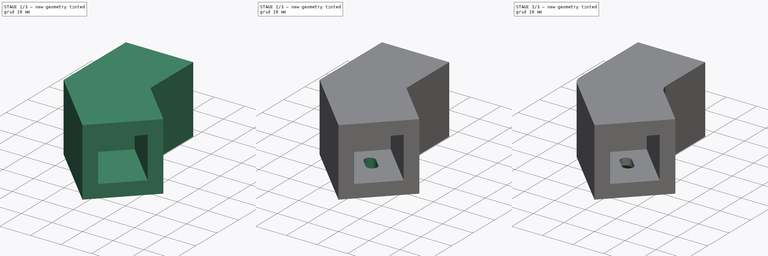
[diagram: build sequence overview — one tinted view per stage of 3, left to right]
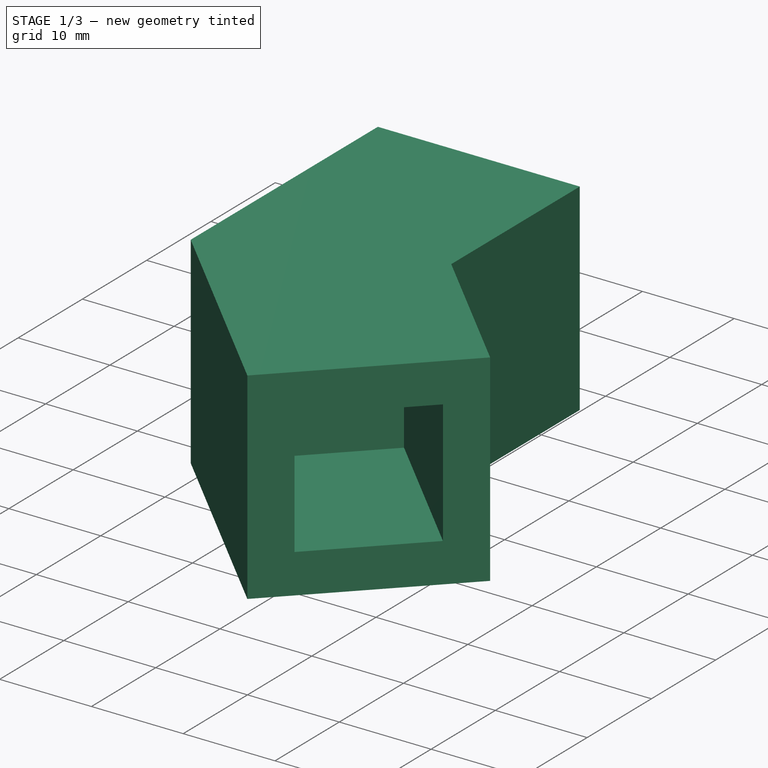
[diagram: stage 1 of 3 — iso view after this stage's code; geometry added in this stage tinted green]
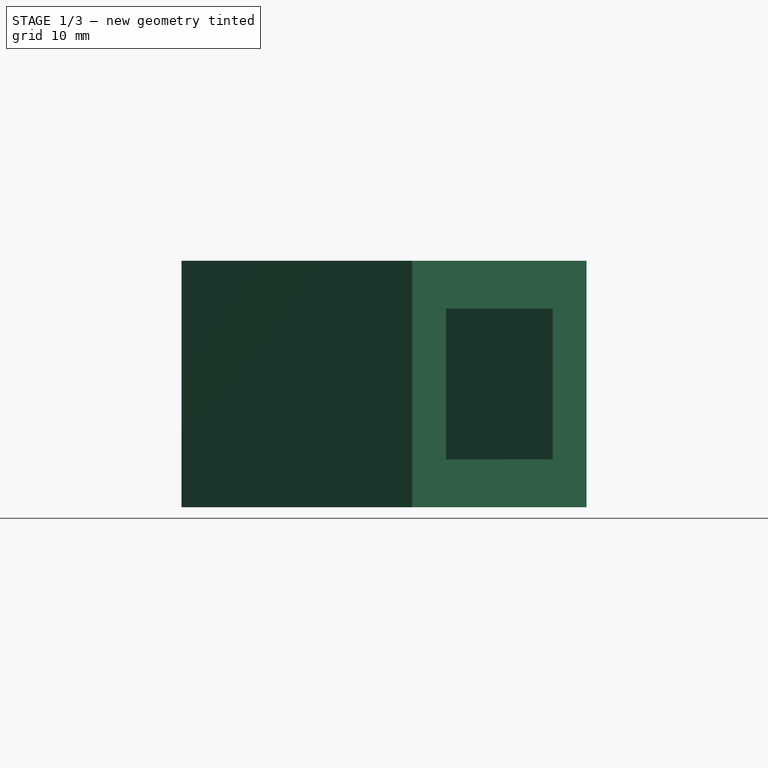
[diagram: stage 1 of 3 — front view after this stage's code; geometry added in this stage tinted green]
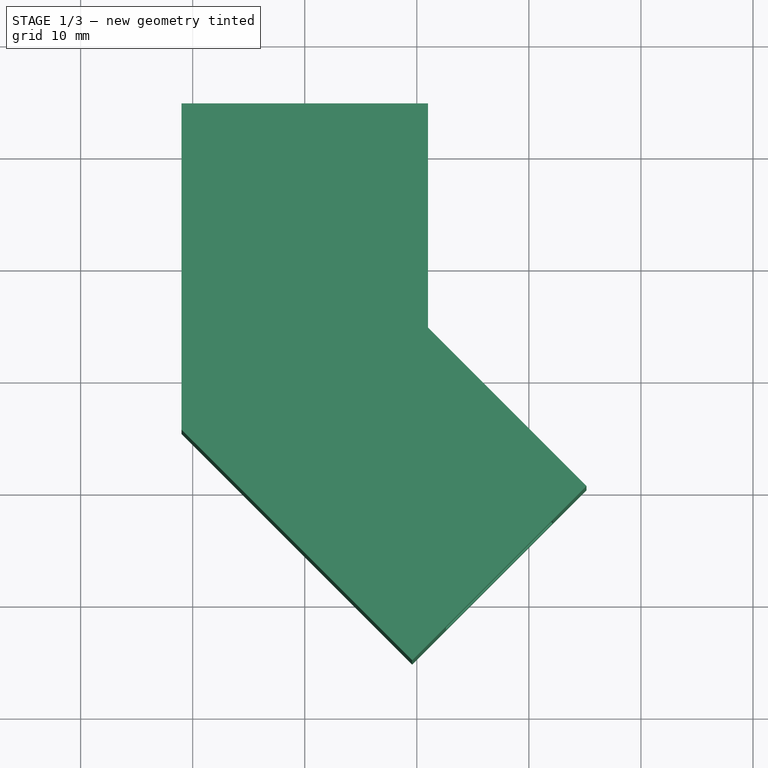
[diagram: stage 1 of 3 — top view after this stage's code; geometry added in this stage tinted green]
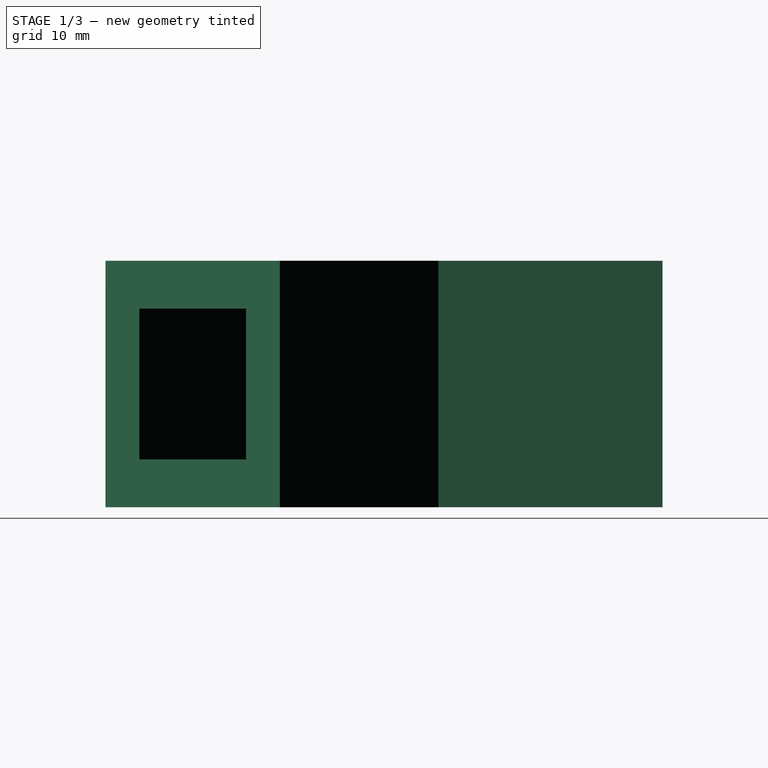
[diagram: stage 1 of 3 — right view after this stage's code; geometry added in this stage tinted green]
FCSTD DOCUMENT  (FreeCAD 0.17R13634 (Git))
Label: Elbow135_square V1
License: All rights reserved
LicenseURL: http://en.wikipedia.org/wiki/All_rights_reserved
objects: Sketcher::SketchObject×4, PartDesign::Pocket×3, PartDesign::Pad×1, PartDesign::Chamfer×1, PartDesign::Fillet×1, PartDesign::Body×1
note: 15 computed .brp shape members not serialized (recipe doc carries the construction recipe); baked Part::Feature solids carry a one-line shape summary decoded from their .brp

FEATURE [Sketcher::SketchObject] Sketch  label="Profile"
  MapMode = 5
  Support = -> [XY_Plane]
  sketch-geometry (7):
    g0: LineSegment StartX=-11 StartY=24.5563 StartZ=0 EndX=11 EndY=24.5563 EndZ=0
    g1: LineSegment StartX=11 StartY=24.5563 StartZ=0 EndX=11 EndY=4.55635 EndZ=0
    g2: LineSegment StartX=11 StartY=4.55635 StartZ=0 EndX=25.1421 EndY=-9.58579 EndZ=0
    g3: LineSegment StartX=25.1421 StartY=-9.58579 StartZ=0 EndX=9.58579 EndY=-25.1421 EndZ=0
    g4: LineSegment StartX=9.58579 StartY=-25.1421 StartZ=0 EndX=-11 EndY=-4.55635 EndZ=0
    g5: LineSegment StartX=-11 StartY=-4.55635 StartZ=0 EndX=-11 EndY=24.5563 EndZ=0
    g6: LineSegment [constr] StartX=-11 StartY=-4.55635 StartZ=0 EndX=11 EndY=4.55635 EndZ=0
  constraints (20):
    c: Horizontal(g0)
    c: Coincident(g0,g1)
    c: Coincident(g1,g2)
    c: Coincident(g2,g3)
    c: Coincident(g3,g4)
    c: Coincident(g4,g5)
    c: Coincident(g5,g0)
    c: Vertical(g5)
    c: Vertical(g1)
    c: Symmetric(g0,g0,g-2)
    c: Angle(g2,g1) = 2.35619
    c: Angle(g4,g5) = 2.35619
    c: Perpendicular(g3,g2)
    c: Equal(g1,g2)
    c: Equal(g5,g4)
    c: Distance(g0) = 22
    c: Distance(g1) = 20
    c: Coincident(g6,g4)
    c: Coincident(g6,g1)
    c: PointOnObject(g-1,g6)
FEATURE [PartDesign::Pad] Pad
  Length = 22
  Length2 = 100
  Profile = -> Sketch
  Type = 0
FEATURE [Sketcher::SketchObject] Sketch001  label="SquareHole1"
  ExternalGeometry = -> [Pad]
  MapMode = 5
  Placement = pos=(17.364,-17.364,0) rot=(0.862856,0.357407,0.357407;1.71777rad)
  Support = -> [Pad]
  sketch-geometry (10):
    g0: LineSegment [constr] StartX=-11 StartY=22 StartZ=0 EndX=11 EndY=0 EndZ=0
    g1: LineSegment [constr] StartX=11 StartY=22 StartZ=0 EndX=-11 EndY=0 EndZ=0
    g2: GeomPoint X=3.4e-11 Y=11 Z=0
    g3: LineSegment StartX=-6.725 StartY=17.725 StartZ=0 EndX=6.725 EndY=17.725 EndZ=0
    g4: LineSegment StartX=6.725 StartY=17.725 StartZ=0 EndX=6.725 EndY=4.275 EndZ=0
    g5: LineSegment StartX=6.725 StartY=4.275 StartZ=0 EndX=-6.725 EndY=4.275 EndZ=0
    g6: LineSegment StartX=-6.725 StartY=4.275 StartZ=0 EndX=-6.725 EndY=17.725 EndZ=0
    g7: LineSegment [constr] StartX=-6.725 StartY=17.725 StartZ=0 EndX=6.725 EndY=4.275 EndZ=0
    g8: LineSegment [constr] StartX=6.725 StartY=17.725 StartZ=0 EndX=-6.725 EndY=4.275 EndZ=0
    g9: GeomPoint X=3.4e-11 Y=11 Z=0
  constraints (23):
    c: Coincident(g0,g-4)
    c: Coincident(g0,g-3)
    c: Coincident(g1,g-3)
    c: Coincident(g1,g-4)
    c: PointOnObject(g2,g1)
    c: PointOnObject(g2,g0)
    c: Coincident(g3,g4)
    c: Coincident(g4,g5)
    c: Coincident(g5,g6)
    c: Coincident(g6,g3)
    c: Horizontal(g3)
    c: Horizontal(g5)
    c: Vertical(g4)
    c: Vertical(g6)
    c: Coincident(g7,g3)
    c: Coincident(g7,g4)
    c: Coincident(g8,g3)
    c: Coincident(g8,g5)
    c: PointOnObject(g9,g8)
    c: PointOnObject(g9,g7)
    c: Coincident(g2,g9)
    c: Equal(g4,g5)
    c: Distance(g4) = 13.45
FEATURE [PartDesign::Pocket] Pocket
  BaseFeature = -> Pad
  Length = 20
  Length2 = 100
  Profile = -> Sketch001
  Type = 0
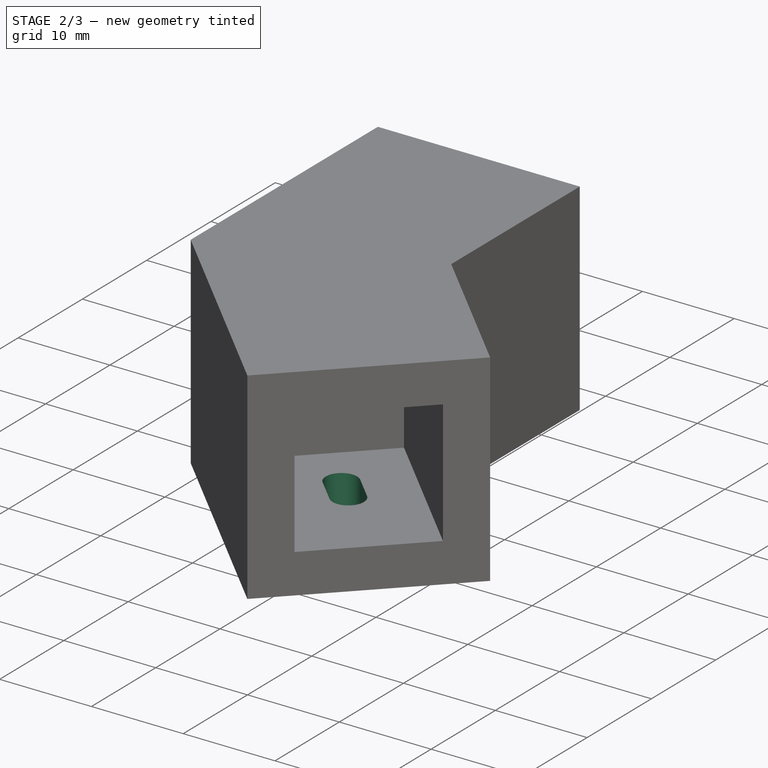
[diagram: stage 2 of 3 — iso view after this stage's code; geometry added in this stage tinted green]
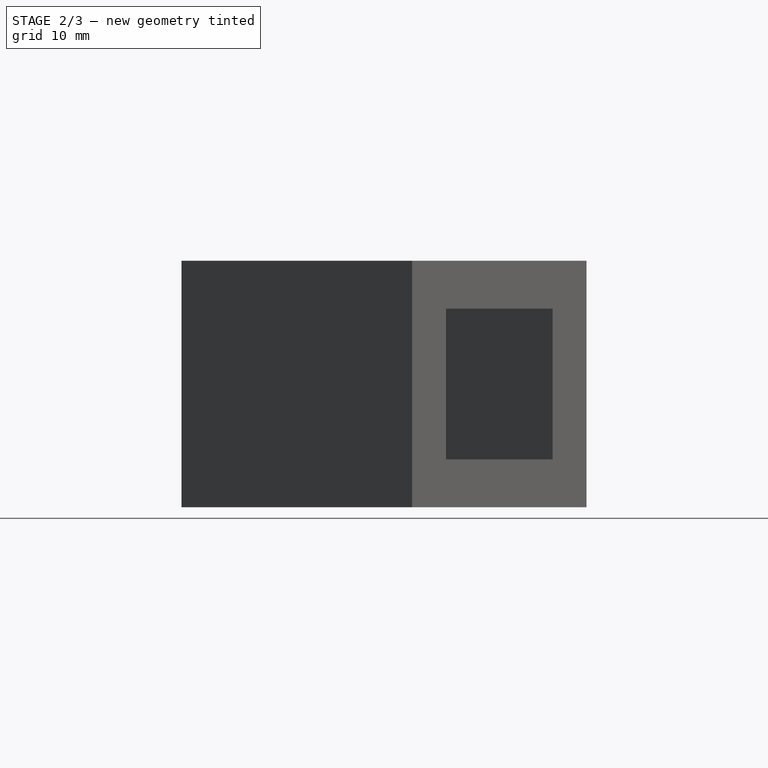
[diagram: stage 2 of 3 — front view after this stage's code; geometry added in this stage tinted green]
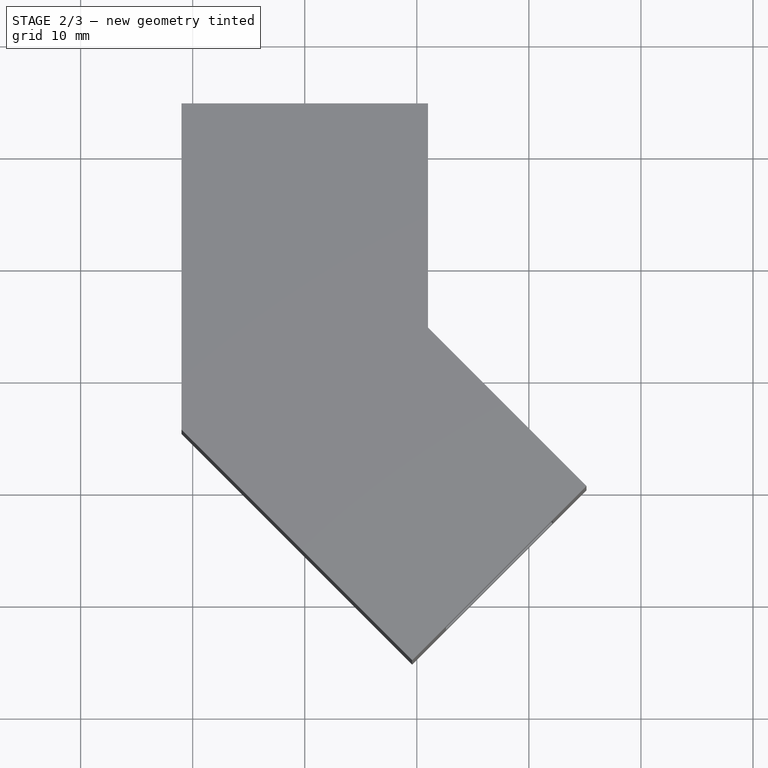
[diagram: stage 2 of 3 — top view after this stage's code; geometry added in this stage tinted green]
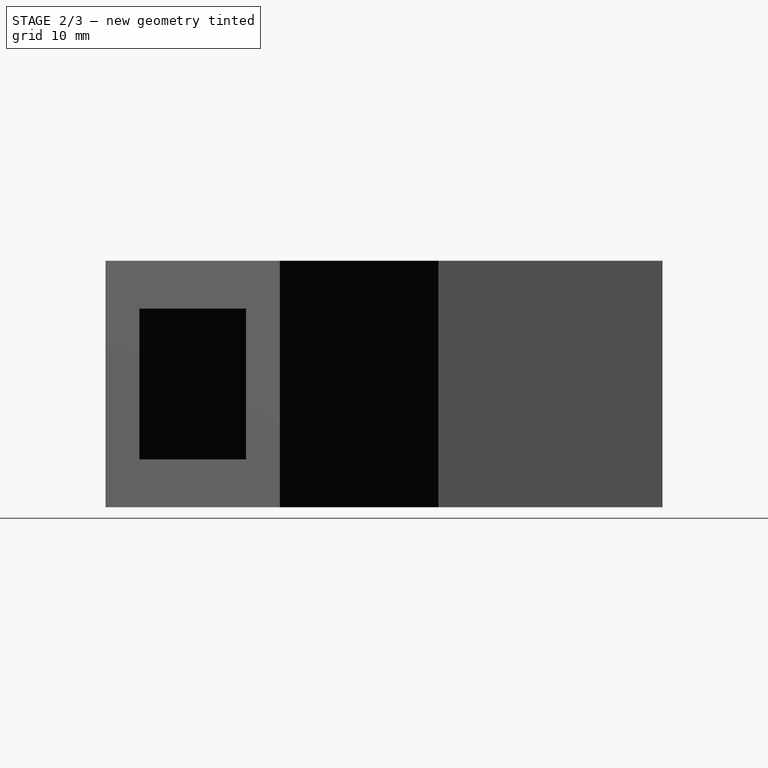
[diagram: stage 2 of 3 — right view after this stage's code; geometry added in this stage tinted green]
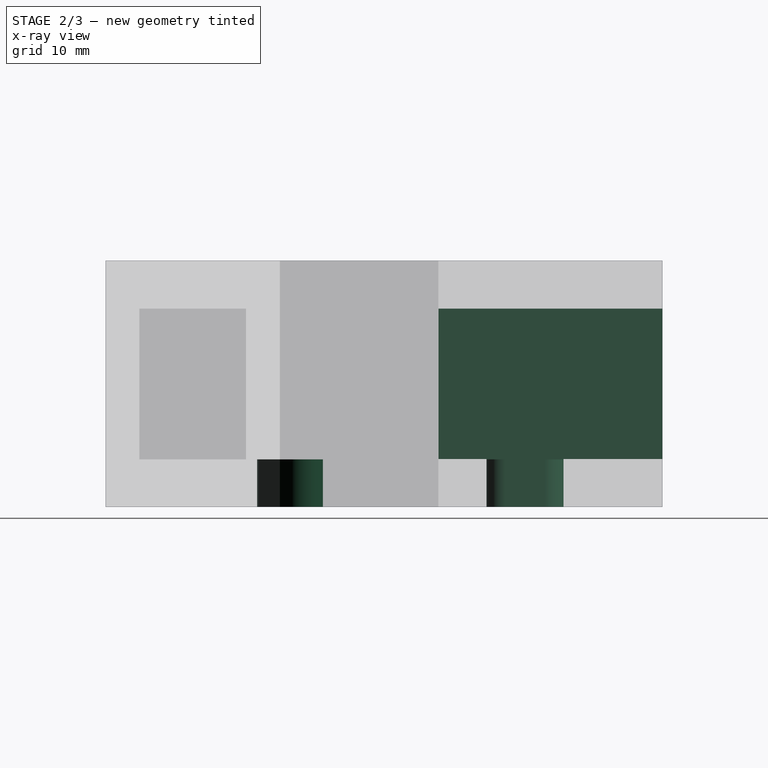
[diagram: stage 2 of 3 — x-ray composite at the right view; earlier geometry ghosted, this stage's added geometry solid]
FEATURE [Sketcher::SketchObject] Sketch002  label="SquareHole2"
  ExternalGeometry = -> [Pocket]
  MapMode = 5
  Placement = pos=(0,24.5563,0) rot=(0,0.707107,0.707107;3.14159rad)
  Support = -> [Pocket]
  sketch-geometry (10):
    g0: LineSegment [constr] StartX=-11 StartY=22 StartZ=0 EndX=11 EndY=0 EndZ=0
    g1: LineSegment [constr] StartX=-11 StartY=0 StartZ=0 EndX=11 EndY=22 EndZ=0
    g2: GeomPoint X=0 Y=11 Z=0
    g3: LineSegment StartX=-6.725 StartY=17.725 StartZ=0 EndX=6.725 EndY=17.725 EndZ=0
    g4: LineSegment StartX=6.725 StartY=17.725 StartZ=0 EndX=6.725 EndY=4.275 EndZ=0
    g5: LineSegment StartX=6.725 StartY=4.275 StartZ=0 EndX=-6.725 EndY=4.275 EndZ=0
    g6: LineSegment StartX=-6.725 StartY=4.275 StartZ=0 EndX=-6.725 EndY=17.725 EndZ=0
    g7: LineSegment [constr] StartX=-6.725 StartY=17.725 StartZ=0 EndX=6.725 EndY=4.275 EndZ=0
    g8: LineSegment [constr] StartX=6.725 StartY=17.725 StartZ=0 EndX=-6.725 EndY=4.275 EndZ=0
    g9: GeomPoint X=0 Y=11 Z=0
  constraints (23):
    c: Coincident(g0,g-3)
    c: Coincident(g0,g-4)
    c: Coincident(g1,g-3)
    c: Coincident(g1,g-4)
    c: PointOnObject(g2,g1)
    c: PointOnObject(g2,g0)
    c: Coincident(g3,g4)
    c: Coincident(g4,g5)
    c: Coincident(g5,g6)
    c: Coincident(g6,g3)
    c: Horizontal(g3)
    c: Horizontal(g5)
    c: Vertical(g4)
    c: Vertical(g6)
    c: Coincident(g7,g3)
    c: Coincident(g7,g4)
    c: Coincident(g8,g3)
    c: Coincident(g8,g5)
    c: PointOnObject(g9,g8)
    c: PointOnObject(g9,g7)
    c: Coincident(g2,g9)
    c: Equal(g3,g4)
    c: Distance(g3) = 13.45
FEATURE [PartDesign::Pocket] Pocket001
  BaseFeature = -> Pocket
  Length = 20
  Length2 = 100
  Profile = -> Sketch002
  Type = 0
FEATURE [Sketcher::SketchObject] Sketch003  label="Slot1"
  ExternalGeometry = -> [Pocket001]
  MapMode = 5
  Placement = pos=(0,0,0) rot=(1,0,0;3.14159rad)
  Support = -> [Pocket001]
  sketch-geometry (18):
    g0: LineSegment [constr] StartX=0 StartY=0 StartZ=0 EndX=17.364 EndY=17.364 EndZ=0
    g1: ArcOfCircle CenterX=0 CenterY=-10.5282 CenterZ=0 NormalX=0 NormalY=0 NormalZ=1 AngleXU=0 Radius=1.7 StartAngle=0 EndAngle=3.14159
    g2: ArcOfCircle CenterX=0 CenterY=-14.0282 CenterZ=0 NormalX=0 NormalY=0 NormalZ=1 AngleXU=0 Radius=1.7 StartAngle=3.14159 EndAngle=6.28319
    g3: LineSegment StartX=-1.7 StartY=-10.5282 StartZ=0 EndX=-1.7 EndY=-14.0282 EndZ=0
    g4: LineSegment StartX=1.7 StartY=-10.5282 StartZ=0 EndX=1.7 EndY=-14.0282 EndZ=0
    g5: LineSegment [constr] StartX=0 StartY=-10.5282 StartZ=0 EndX=0 EndY=0 EndZ=0
    g6: LineSegment [constr] StartX=0 StartY=-14.0282 StartZ=0 EndX=0 EndY=-24.5563 EndZ=0
    g7: LineSegment StartX=8.71734 StartY=11.1215 StartZ=0 EndX=6.24246 EndY=8.64663 EndZ=0
    g8: LineSegment StartX=11.1215 StartY=8.71734 StartZ=0 EndX=8.64663 EndY=6.24246 EndZ=0
    g9: ArcOfCircle CenterX=9.91942 CenterY=9.91942 CenterZ=0 NormalX=0 NormalY=0 NormalZ=1 AngleXU=0 Radius=1.7 StartAngle=5.49779 EndAngle=8.63938
    g10: ArcOfCircle CenterX=7.44454 CenterY=7.44454 CenterZ=0 NormalX=0 NormalY=0 NormalZ=1 AngleXU=0 Radius=1.7 StartAngle=2.35619 EndAngle=5.49779
    g11: LineSegment [constr] StartX=9.91942 StartY=9.91942 StartZ=0 EndX=17.364 EndY=17.364 EndZ=0
    g12: LineSegment [constr] StartX=7.44454 StartY=7.44454 StartZ=0 EndX=0 EndY=0 EndZ=0
    g13: LineSegment [constr] StartX=21.9955 StartY=12.7324 StartZ=0 EndX=14.551 EndY=5.28787 EndZ=0
    g14: LineSegment [constr] StartX=4.63155 StartY=-4.63155 StartZ=0 EndX=12.0761 EndY=2.81299 EndZ=0
    g15: LineSegment [constr] StartX=4.63155 StartY=-4.63155 StartZ=0 EndX=0 EndY=0 EndZ=0
    g16: LineSegment [constr] StartX=12.0761 StartY=2.81299 StartZ=0 EndX=7.44454 EndY=7.44454 EndZ=0
    g17: LineSegment [constr] StartX=9.91942 StartY=9.91942 StartZ=0 EndX=14.551 EndY=5.28787 EndZ=0
  constraints (47):
    c: Coincident(g0,g-1)
    c: PointOnObject(g0,g-5)
    c: Perpendicular(g-5,g0)
    c: Tangent(g1,g4) = 1.5708
    c: Tangent(g1,g3) = -1.5708
    c: Tangent(g3,g2) = -1.5708
    c: Tangent(g4,g2) = 1.5708
    c: Vertical(g3)
    c: Equal(g1,g2)
    c: PointOnObject(g1,g-2)
    c: Coincident(g5,g1)
    c: Coincident(g5,g-1)
    c: Coincident(g6,g2)
    c: PointOnObject(g6,g-6)
    c: PointOnObject(g6,g-2)
    c: Equal(g5,g6)
    c: Distance(g1,g1) = 3.4
    c: Distance(g1,g2) = 3.5
    c: Coincident(g7,g10)
    c: Equal(g10,g9)
    c: Equal(g7,g8)
    c: Tangent(g8,g9) = 1.5708
    c: Tangent(g7,g9) = -1.5708
    c: PointOnObject(g9,g0)
    c: PointOnObject(g10,g0)
    c: Tangent(g10,g8) = 1.5708
    c: Coincident(g11,g9)
    c: Coincident(g11,g0)
    c: Coincident(g12,g10)
    c: Coincident(g12,g-1)
    c: PointOnObject(g13,g-5)
    c: Parallel(g14,g0)
    c: Parallel(g13,g0)
    c: Equal(g14,g13)
    c: Coincident(g15,g14)
    c: Coincident(g15,g-1)
    c: Perpendicular(g14,g15)
    c: Coincident(g16,g14)
    c: Coincident(g16,g10)
    c: Perpendicular(g0,g16)
    c: Coincident(g17,g9)
    c: Coincident(g17,g13)
    c: Perpendicular(g0,g17)
    c: Equal(g16,g17)
    c: Distance(g17) = 6.55
    c: Distance(g8,g7) = 3.4
    c: Distance(g8) = 3.5
FEATURE [PartDesign::Pocket] Pocket002
  BaseFeature = -> Pocket001
  Length = 5
  Length2 = 100
  Profile = -> Sketch003
  Type = 0
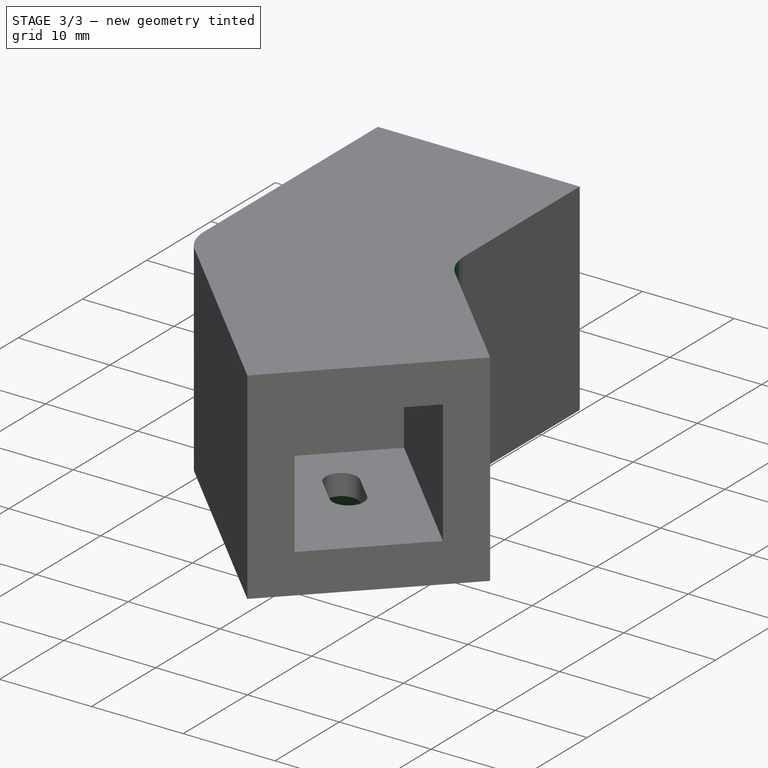
[diagram: stage 3 of 3 — iso view after this stage's code; geometry added in this stage tinted green]
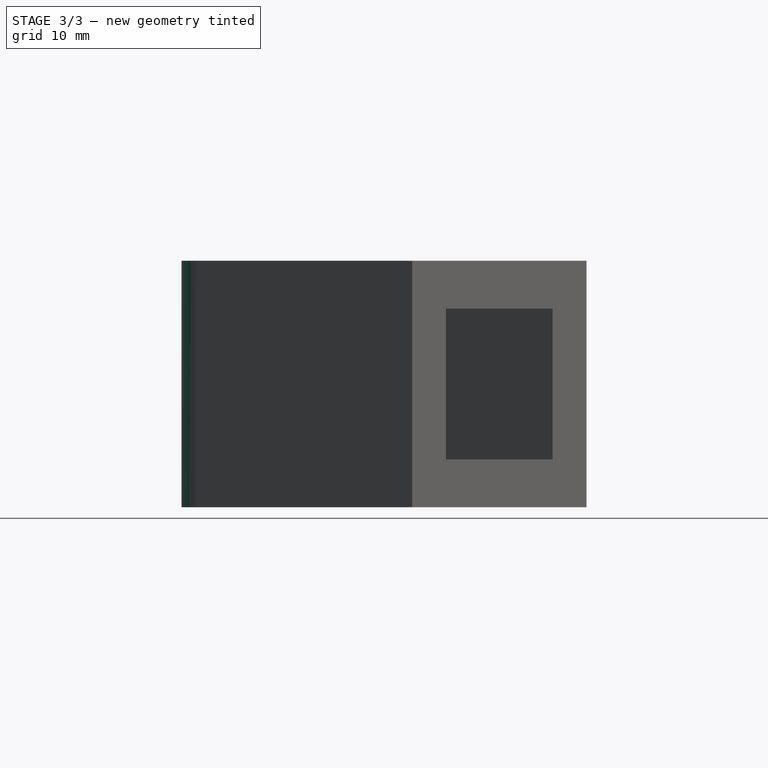
[diagram: stage 3 of 3 — front view after this stage's code; geometry added in this stage tinted green]
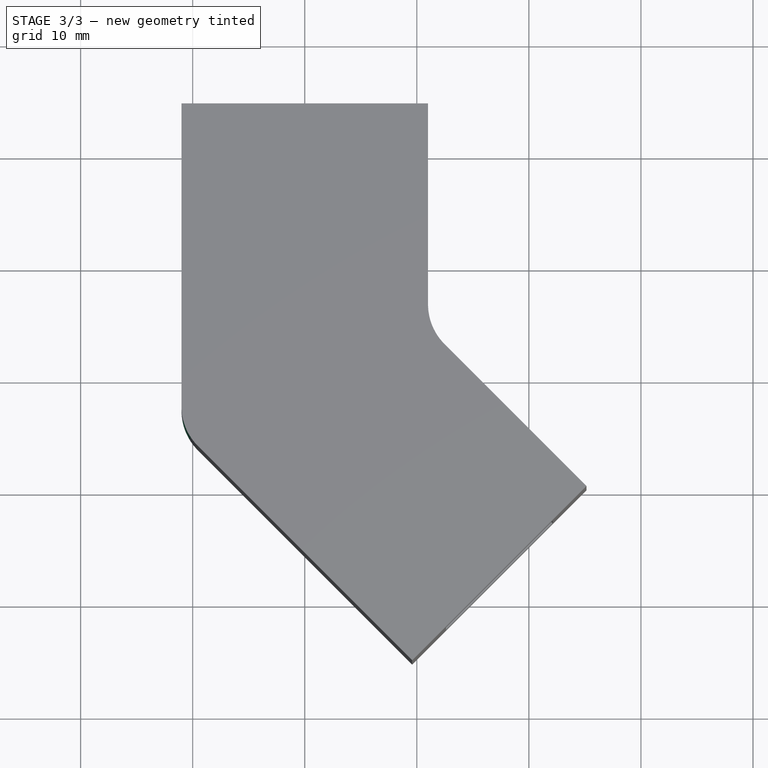
[diagram: stage 3 of 3 — top view after this stage's code; geometry added in this stage tinted green]
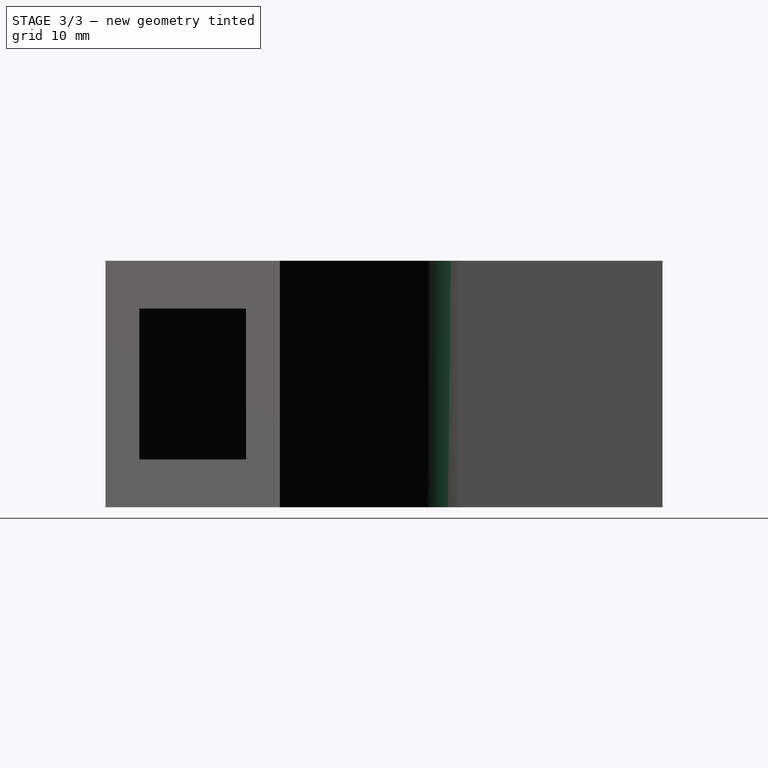
[diagram: stage 3 of 3 — right view after this stage's code; geometry added in this stage tinted green]
FEATURE [PartDesign::Chamfer] Chamfer
  Base = -> Pocket002 [Edge22,Edge23,Edge20,Edge21,Edge16,Edge19,Edge18,Edge17]
  BaseFeature = -> Pocket002
  Size = 2
FEATURE [PartDesign::Fillet] Fillet
  Base = -> Chamfer [Edge30,Edge32]
  BaseFeature = -> Chamfer
  Radius = 5
FEATURE [PartDesign::Body] Body
  Group = -> [Sketch,Pad,Sketch001,Pocket,Sketch002,Pocket001,Sketch003,Pocket002,Chamfer,Fillet]
  Origin = -> Origin
  Tip = -> Fillet
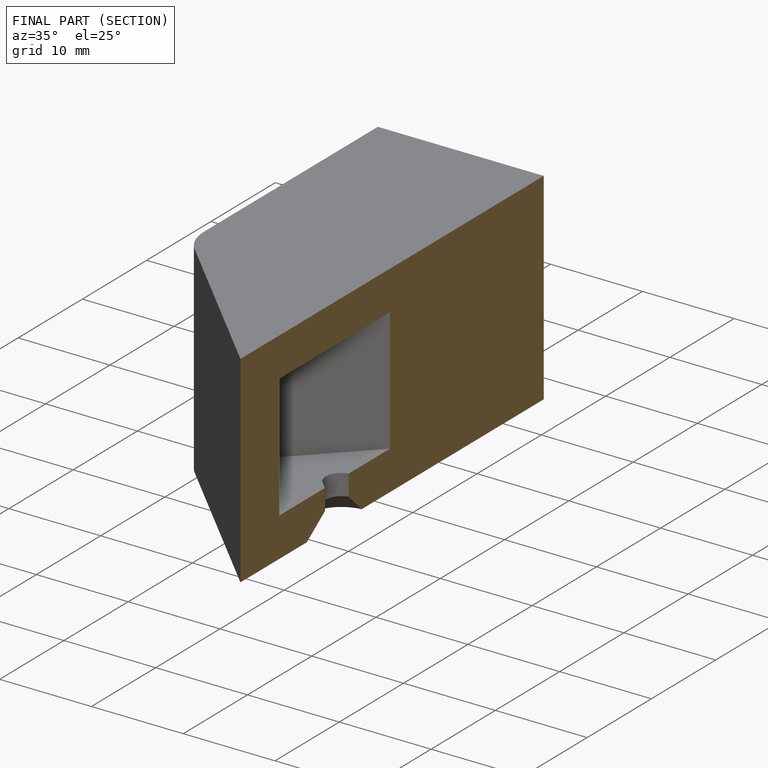
[diagram: finished part — half-section view (interior)]
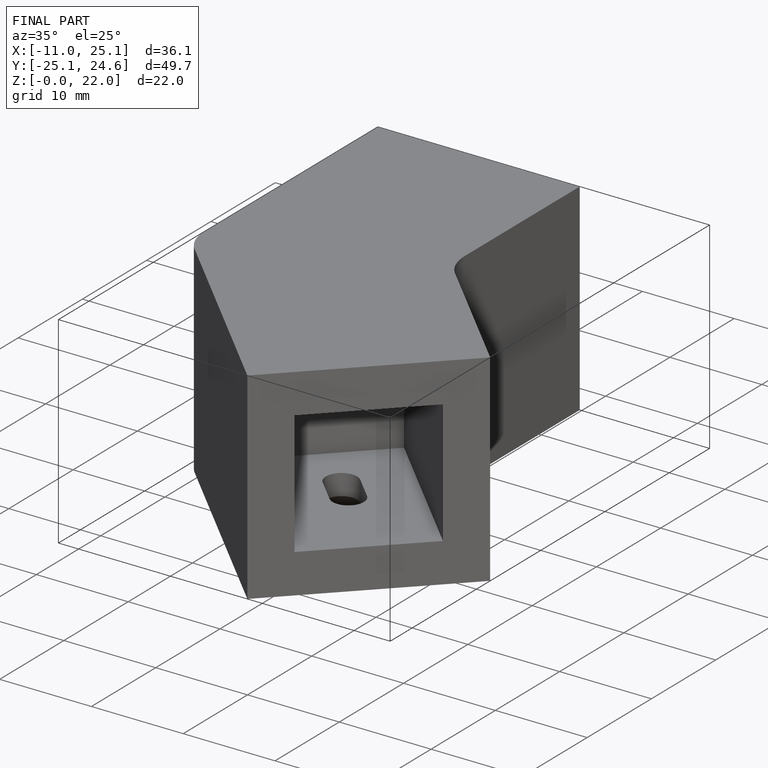
[diagram: finished part — iso view with bounding-box wireframe]
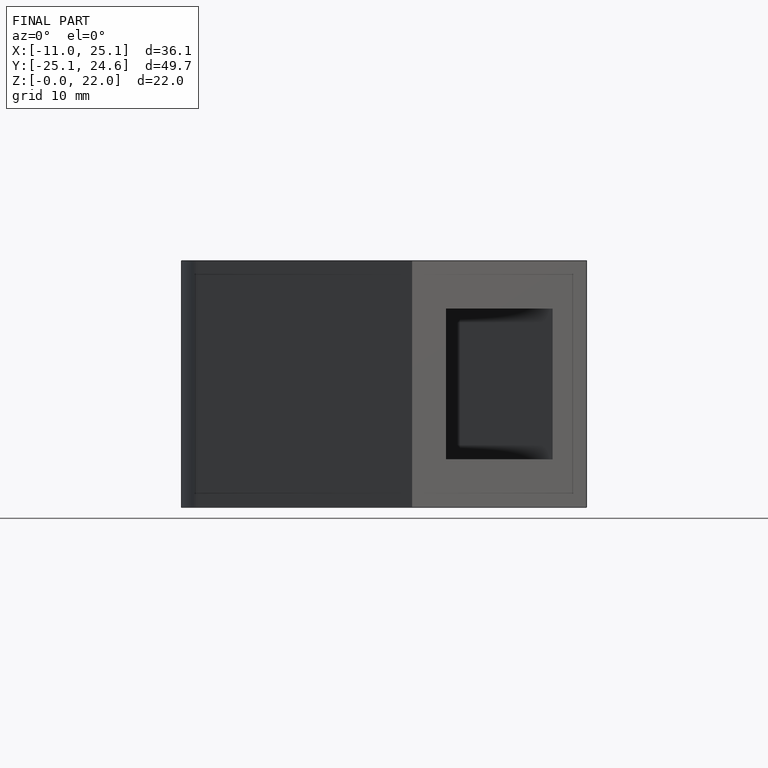
[diagram: finished part — front view with bounding-box wireframe]
